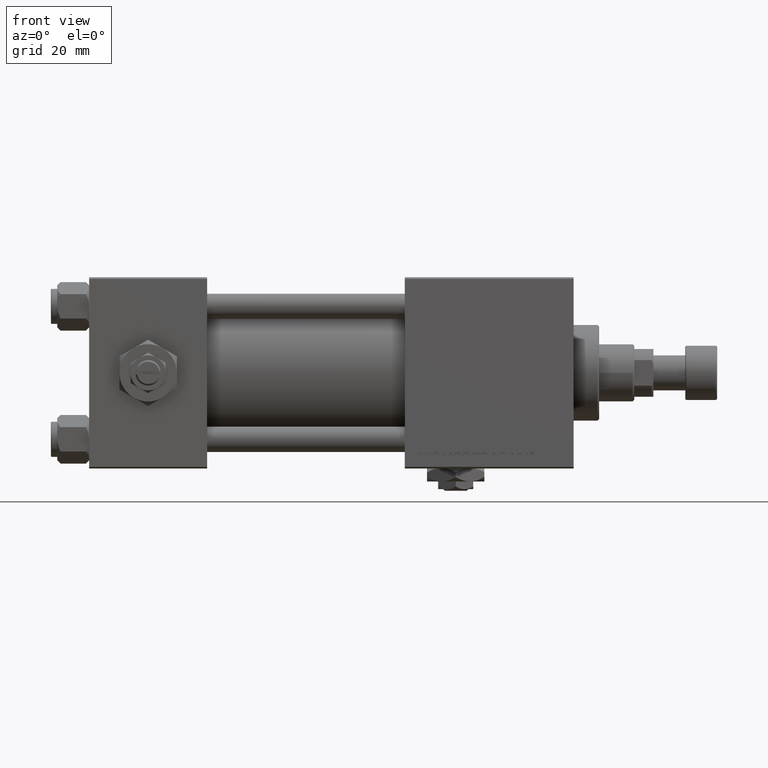
[diagram: clean part render]
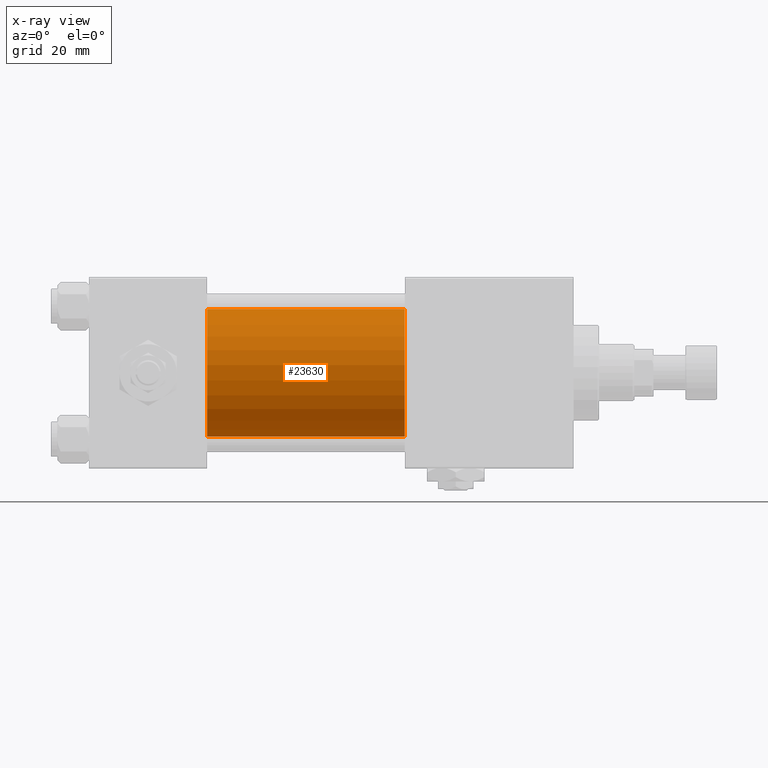
[diagram: x-ray — body ghosted, one internal face saturated and labeled with its STEP entity id]
A machine part, front view, then the same camera in x-ray: the body is ghosted and one INTERNAL B-rep face — a face not visible from any outside direction — is saturated and labeled: STEP entity #23630.
In plain terms, the highlighted cylindrical surface (partial cylindrical patch) has radius 20 mm, axis along (-1, -0, -0).
Its self-contained STEP definition (entity closure, byte-faithful):
#10 = EDGE_CURVE ( 'NONE', #41333, #19808, #21555, .T. ) ;
#644 = DIRECTION ( 'NONE',  ( 1.000000000000000000, 0.000000000000000000, 0.000000000000000000 ) ) ;
#706 = AXIS2_PLACEMENT_3D ( 'NONE', #41716, #16362, #49186 ) ;
#2372 = ORIENTED_EDGE ( 'NONE', *, *, #10, .F. ) ;
#2610 = CARTESIAN_POINT ( 'NONE',  ( 37.00000000000000000, -1.527916156705042519E-16, -20.00000000000000000 ) ) ;
#3676 = AXIS2_PLACEMENT_3D ( 'NONE', #37990, #644, #24922 ) ;
#5034 = AXIS2_PLACEMENT_3D ( 'NONE', #46201, #26698, #46460 ) ;
#14470 = LINE ( 'NONE', #26752, #47497 ) ;
#16362 = DIRECTION ( 'NONE',  ( -1.000000000000000000, -0.000000000000000000, -0.000000000000000000 ) ) ;
#16831 = CARTESIAN_POINT ( 'NONE',  ( 99.00000000000000000, -1.527916156705042519E-16, -20.00000000000000000 ) ) ;
#19808 = VERTEX_POINT ( 'NONE', #2610 ) ;
#19876 = ORIENTED_EDGE ( 'NONE', *, *, #40568, .F. ) ;
#20319 = VERTEX_POINT ( 'NONE', #16831 ) ;
#21555 = CIRCLE ( 'NONE', #3676, 20.00000000000000000 ) ;
#23630 = ADVANCED_FACE ( 'NONE', ( #45196 ), #33684, .F. ) ;
#23634 = DIRECTION ( 'NONE',  ( -1.000000000000000000, -0.000000000000000000, -0.000000000000000000 ) ) ;
#24922 = DIRECTION ( 'NONE',  ( 0.000000000000000000, 0.000000000000000000, -1.000000000000000000 ) ) ;
#25211 = ORIENTED_EDGE ( 'NONE', *, *, #25616, .T. ) ;
#25616 = EDGE_CURVE ( 'NONE', #30258, #20319, #31500, .T. ) ;
#26509 = ORIENTED_EDGE ( 'NONE', *, *, #41858, .T. ) ;
#26698 = DIRECTION ( 'NONE',  ( 1.000000000000000000, 0.000000000000000000, 0.000000000000000000 ) ) ;
#26752 = CARTESIAN_POINT ( 'NONE',  ( 99.00000000000000000, -1.527916156705042519E-16, -20.00000000000000000 ) ) ;
#27384 = CARTESIAN_POINT ( 'NONE',  ( 99.00000000000000000, -2.602085213965210642E-15, 20.00000000000000000 ) ) ;
#28787 = EDGE_LOOP ( 'NONE', ( #25211, #26509, #2372, #19876 ) ) ;
#30258 = VERTEX_POINT ( 'NONE', #41379 ) ;
#31500 = CIRCLE ( 'NONE', #5034, 20.00000000000000000 ) ;
#33684 = CYLINDRICAL_SURFACE ( 'NONE', #706, 20.00000000000000000 ) ;
#35634 = VECTOR ( 'NONE', #23634, 1000.000000000000000 ) ;
#37990 = CARTESIAN_POINT ( 'NONE',  ( 37.00000000000000000, -2.602085213965210642E-15, 0.000000000000000000 ) ) ;
#38508 = DIRECTION ( 'NONE',  ( -1.000000000000000000, -0.000000000000000000, -0.000000000000000000 ) ) ;
#40533 = CARTESIAN_POINT ( 'NONE',  ( 37.00000000000000000, -2.602085213965210642E-15, 20.00000000000000000 ) ) ;
#40568 = EDGE_CURVE ( 'NONE', #30258, #41333, #47151, .T. ) ;
#41333 = VERTEX_POINT ( 'NONE', #40533 ) ;
#41379 = CARTESIAN_POINT ( 'NONE',  ( 99.00000000000000000, -2.602085213965210642E-15, 20.00000000000000000 ) ) ;
#41716 = CARTESIAN_POINT ( 'NONE',  ( 99.00000000000000000, -2.602085213965210642E-15, 0.000000000000000000 ) ) ;
#41858 = EDGE_CURVE ( 'NONE', #20319, #19808, #14470, .T. ) ;
#45196 = FACE_OUTER_BOUND ( 'NONE', #28787, .T. ) ;
#46201 = CARTESIAN_POINT ( 'NONE',  ( 99.00000000000000000, -2.602085213965210642E-15, 0.000000000000000000 ) ) ;
#46460 = DIRECTION ( 'NONE',  ( 0.000000000000000000, 0.000000000000000000, -1.000000000000000000 ) ) ;
#47151 = LINE ( 'NONE', #27384, #35634 ) ;
#47497 = VECTOR ( 'NONE', #38508, 1000.000000000000000 ) ;
#49186 = DIRECTION ( 'NONE',  ( 0.000000000000000000, 0.000000000000000000, 1.000000000000000000 ) ) ;